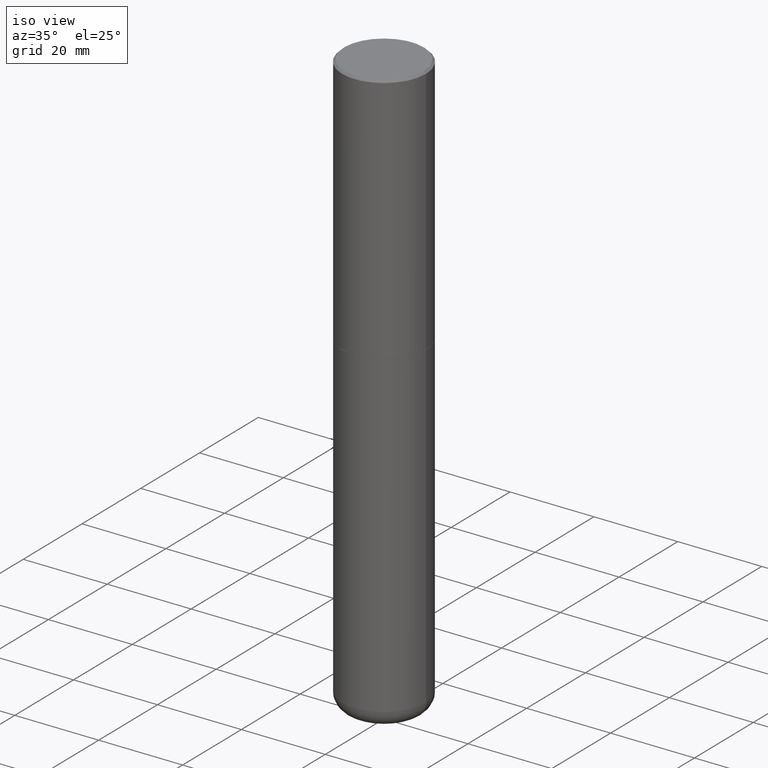
[diagram: clean part render]
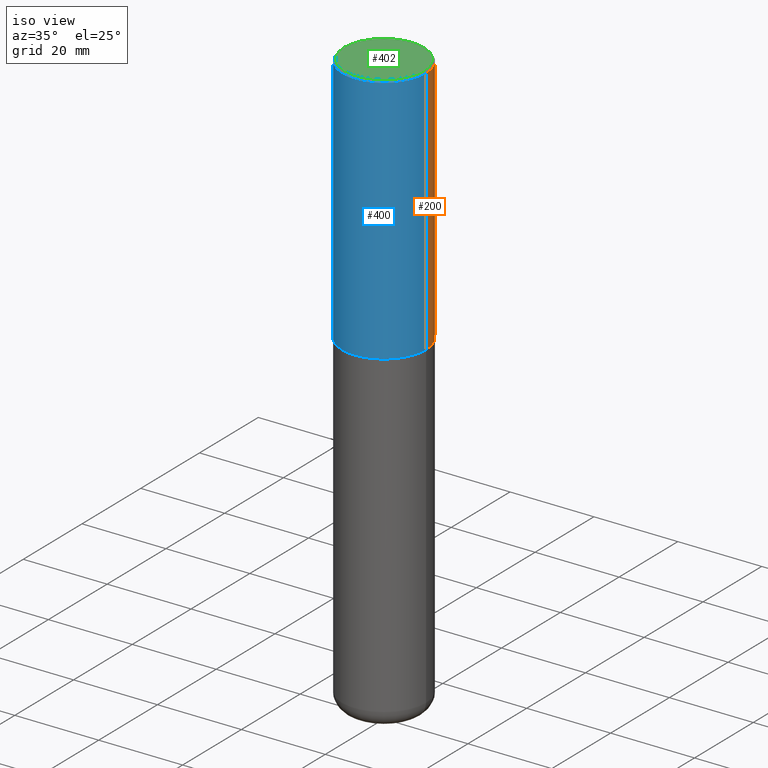
[diagram: same view with three faces highlighted in distinct colors, each labeled with its STEP entity id]
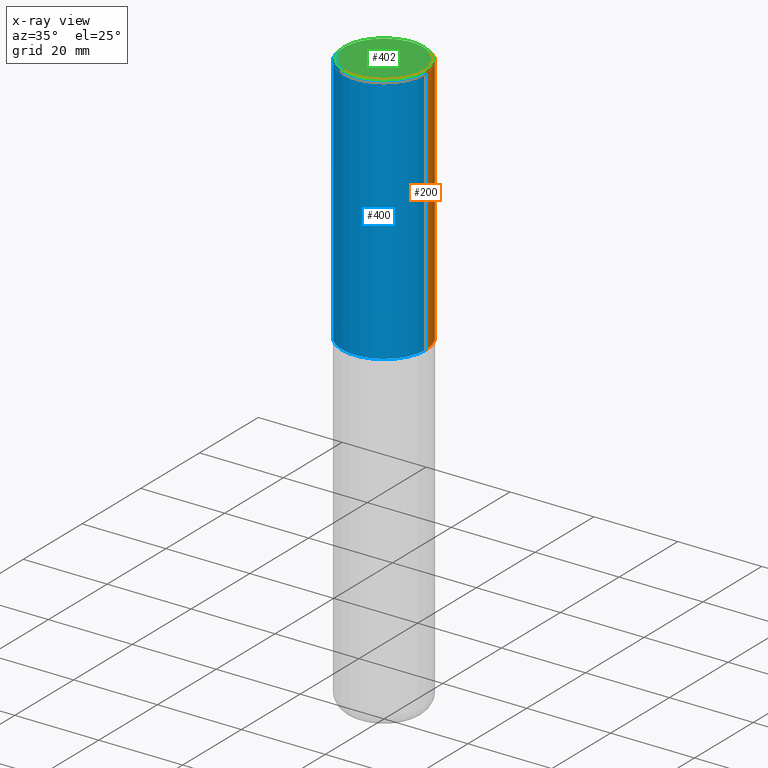
[diagram: x-ray of the same camera — body ghosted, the three highlighted faces saturated]
A machine part, iso view with three faces highlighted in distinct colors.
The next image is the same camera in x-ray (body ghosted, the three faces saturated) — at least one of them is partly hidden behind the body in this view.
Their STEP definitions:

[orange] entity #200 — the highlighted cylindrical surface (partial cylindrical patch) has radius 10 mm, axis along (-0, 0, 1).
#7 = CARTESIAN_POINT ( 'NONE',  ( -0.3937000000000001054, 2.679362779428220707E-15, -0.02000000000000008715 ) ) ;
#15 = CARTESIAN_POINT ( 'NONE',  ( -0.3937000000000002164, 2.797406750687515970E-15, -1.936584745033357576E-29 ) ) ;
#35 = VECTOR ( 'NONE', #297, 39.37007874015748143 ) ;
#44 = DIRECTION ( 'NONE',  ( -2.445468806185136597E-29, 3.491481338843145583E-15, 1.000000000000000000 ) ) ;
#50 = CARTESIAN_POINT ( 'NONE',  ( -0.3937000000000002720, -1.359550931339130834E-15, -2.361199999999999743 ) ) ;
#58 = CARTESIAN_POINT ( 'NONE',  ( 0.3937000000000002720, -1.099327814348151984E-14, -2.361199999999999743 ) ) ;
#65 = ORIENTED_EDGE ( 'NONE', *, *, #333, .F. ) ;
#66 = EDGE_CURVE ( 'NONE', #158, #128, #101, .T. ) ;
#68 = ORIENTED_EDGE ( 'NONE', *, *, #260, .F. ) ;
#70 = EDGE_CURVE ( 'NONE', #128, #416, #175, .T. ) ;
#87 = CARTESIAN_POINT ( 'NONE',  ( 0.3937000000000002164, -2.749192406205084794E-15, 1.919750796630861012E-29 ) ) ;
#96 = VERTEX_POINT ( 'NONE', #136 ) ;
#101 = CIRCLE ( 'NONE', #195, 0.3937000000000002720 ) ;
#115 = DIRECTION ( 'NONE',  ( -2.445468806185136597E-29, 3.491481338843145583E-15, 1.000000000000000000 ) ) ;
#128 = VERTEX_POINT ( 'NONE', #50 ) ;
#136 = CARTESIAN_POINT ( 'NONE',  ( 0.3937000000000001054, -2.770807688499516128E-15, -0.02000000000000008715 ) ) ;
#150 = DIRECTION ( 'NONE',  ( -2.445468806185136877E-29, 3.491481338843145188E-15, 1.000000000000000000 ) ) ;
#157 = CARTESIAN_POINT ( 'NONE',  ( 4.890937612370294178E-31, -6.982962677686321191E-17, -0.02000000000000008715 ) ) ;
#158 = VERTEX_POINT ( 'NONE', #58 ) ;
#160 = DIRECTION ( 'NONE',  ( 1.000000000000000000, -6.982962677686266711E-15, 0.000000000000000000 ) ) ;
#175 = LINE ( 'NONE', #15, #35 ) ;
#195 = AXIS2_PLACEMENT_3D ( 'NONE', #327, #44, #293 ) ;
#200 = ADVANCED_FACE ( 'NONE', ( #274 ), #307, .T. ) ;
#221 = EDGE_LOOP ( 'NONE', ( #233, #392, #65, #68 ) ) ;
#227 = VECTOR ( 'NONE', #150, 39.37007874015748143 ) ;
#233 = ORIENTED_EDGE ( 'NONE', *, *, #66, .T. ) ;
#249 = AXIS2_PLACEMENT_3D ( 'NONE', #157, #310, #160 ) ;
#260 = EDGE_CURVE ( 'NONE', #158, #96, #406, .T. ) ;
#274 = FACE_OUTER_BOUND ( 'NONE', #221, .T. ) ;
#280 = CIRCLE ( 'NONE', #249, 0.3937000000000001054 ) ;
#293 = DIRECTION ( 'NONE',  ( 1.000000000000000000, -6.982962677686265922E-15, 0.000000000000000000 ) ) ;
#297 = DIRECTION ( 'NONE',  ( -2.445468806185136877E-29, 3.491481338843145188E-15, 1.000000000000000000 ) ) ;
#307 = CYLINDRICAL_SURFACE ( 'NONE', #362, 0.3937000000000002164 ) ;
#310 = DIRECTION ( 'NONE',  ( -2.445468806185136597E-29, 3.491481338843145583E-15, 1.000000000000000000 ) ) ;
#327 = CARTESIAN_POINT ( 'NONE',  ( 5.774240945164344150E-29, -8.244085737276435042E-15, -2.361199999999999743 ) ) ;
#333 = EDGE_CURVE ( 'NONE', #96, #416, #280, .T. ) ;
#362 = AXIS2_PLACEMENT_3D ( 'NONE', #403, #115, #401 ) ;
#392 = ORIENTED_EDGE ( 'NONE', *, *, #70, .T. ) ;
#401 = DIRECTION ( 'NONE',  ( 1.000000000000000000, -6.982962677686266711E-15, 4.876176775795935793E-29 ) ) ;
#403 = CARTESIAN_POINT ( 'NONE',  ( 0.000000000000000000, 0.000000000000000000, 0.000000000000000000 ) ) ;
#406 = LINE ( 'NONE', #87, #227 ) ;
#416 = VERTEX_POINT ( 'NONE', #7 ) ;

[blue] entity #400 — the highlighted cylindrical surface (partial cylindrical patch) has radius 10 mm, axis along (-0, 0, 1).
#7 = CARTESIAN_POINT ( 'NONE',  ( -0.3937000000000001054, 2.679362779428220707E-15, -0.02000000000000008715 ) ) ;
#15 = CARTESIAN_POINT ( 'NONE',  ( -0.3937000000000002164, 2.797406750687515970E-15, -1.936584745033357576E-29 ) ) ;
#33 = DIRECTION ( 'NONE',  ( -2.445468806185136597E-29, 3.491481338843145583E-15, 1.000000000000000000 ) ) ;
#35 = VECTOR ( 'NONE', #297, 39.37007874015748143 ) ;
#50 = CARTESIAN_POINT ( 'NONE',  ( -0.3937000000000002720, -1.359550931339130834E-15, -2.361199999999999743 ) ) ;
#55 = AXIS2_PLACEMENT_3D ( 'NONE', #250, #281, #311 ) ;
#58 = CARTESIAN_POINT ( 'NONE',  ( 0.3937000000000002720, -1.099327814348151984E-14, -2.361199999999999743 ) ) ;
#62 = DIRECTION ( 'NONE',  ( 1.000000000000000000, -6.982962677686266711E-15, 4.876176775795935793E-29 ) ) ;
#70 = EDGE_CURVE ( 'NONE', #128, #416, #175, .T. ) ;
#86 = DIRECTION ( 'NONE',  ( 1.000000000000000000, -6.982962677686266711E-15, 0.000000000000000000 ) ) ;
#87 = CARTESIAN_POINT ( 'NONE',  ( 0.3937000000000002164, -2.749192406205084794E-15, 1.919750796630861012E-29 ) ) ;
#96 = VERTEX_POINT ( 'NONE', #136 ) ;
#128 = VERTEX_POINT ( 'NONE', #50 ) ;
#136 = CARTESIAN_POINT ( 'NONE',  ( 0.3937000000000001054, -2.770807688499516128E-15, -0.02000000000000008715 ) ) ;
#150 = DIRECTION ( 'NONE',  ( -2.445468806185136877E-29, 3.491481338843145188E-15, 1.000000000000000000 ) ) ;
#156 = AXIS2_PLACEMENT_3D ( 'NONE', #309, #244, #86 ) ;
#158 = VERTEX_POINT ( 'NONE', #58 ) ;
#175 = LINE ( 'NONE', #15, #35 ) ;
#217 = ORIENTED_EDGE ( 'NONE', *, *, #332, .T. ) ;
#220 = FACE_OUTER_BOUND ( 'NONE', #367, .T. ) ;
#227 = VECTOR ( 'NONE', #150, 39.37007874015748143 ) ;
#229 = ORIENTED_EDGE ( 'NONE', *, *, #260, .T. ) ;
#236 = CIRCLE ( 'NONE', #156, 0.3937000000000001054 ) ;
#244 = DIRECTION ( 'NONE',  ( -2.445468806185136597E-29, 3.491481338843145583E-15, 1.000000000000000000 ) ) ;
#250 = CARTESIAN_POINT ( 'NONE',  ( 5.774240945164344150E-29, -8.244085737276435042E-15, -2.361199999999999743 ) ) ;
#260 = EDGE_CURVE ( 'NONE', #158, #96, #406, .T. ) ;
#263 = EDGE_CURVE ( 'NONE', #416, #96, #236, .T. ) ;
#281 = DIRECTION ( 'NONE',  ( -2.445468806185136597E-29, 3.491481338843145583E-15, 1.000000000000000000 ) ) ;
#282 = ORIENTED_EDGE ( 'NONE', *, *, #263, .F. ) ;
#297 = DIRECTION ( 'NONE',  ( -2.445468806185136877E-29, 3.491481338843145188E-15, 1.000000000000000000 ) ) ;
#309 = CARTESIAN_POINT ( 'NONE',  ( 4.890937612370294178E-31, -6.982962677686321191E-17, -0.02000000000000008715 ) ) ;
#311 = DIRECTION ( 'NONE',  ( 1.000000000000000000, -6.982962677686265922E-15, 0.000000000000000000 ) ) ;
#313 = AXIS2_PLACEMENT_3D ( 'NONE', #410, #33, #62 ) ;
#332 = EDGE_CURVE ( 'NONE', #128, #158, #366, .T. ) ;
#366 = CIRCLE ( 'NONE', #55, 0.3937000000000002720 ) ;
#367 = EDGE_LOOP ( 'NONE', ( #396, #217, #229, #282 ) ) ;
#382 = CYLINDRICAL_SURFACE ( 'NONE', #313, 0.3937000000000002164 ) ;
#396 = ORIENTED_EDGE ( 'NONE', *, *, #70, .F. ) ;
#400 = ADVANCED_FACE ( 'NONE', ( #220 ), #382, .T. ) ;
#406 = LINE ( 'NONE', #87, #227 ) ;
#410 = CARTESIAN_POINT ( 'NONE',  ( 0.000000000000000000, 0.000000000000000000, 0.000000000000000000 ) ) ;
#416 = VERTEX_POINT ( 'NONE', #7 ) ;

[green] entity #402 — the highlighted planar face has unit normal (0, -0, -1).
#12 = CARTESIAN_POINT ( 'NONE',  ( -0.3736999999999999211, 2.644447966039789453E-15, 2.262311619753034352E-16 ) ) ;
#49 = AXIS2_PLACEMENT_3D ( 'NONE', #370, #377, #375 ) ;
#80 = EDGE_LOOP ( 'NONE', ( #197, #312 ) ) ;
#92 = CARTESIAN_POINT ( 'NONE',  ( 2.609533152651356620E-15, 0.3736999999999999211, -1.191650995338022328E-15 ) ) ;
#93 = VERTEX_POINT ( 'NONE', #12 ) ;
#97 = EDGE_CURVE ( 'NONE', #93, #355, #187, .T. ) ;
#143 = AXIS2_PLACEMENT_3D ( 'NONE', #264, #399, #177 ) ;
#177 = DIRECTION ( 'NONE',  ( 1.000000000000000000, -6.982962677686266711E-15, 4.877734241229876808E-29 ) ) ;
#187 = CIRCLE ( 'NONE', #143, 0.3736999999999999211 ) ;
#197 = ORIENTED_EDGE ( 'NONE', *, *, #97, .T. ) ;
#218 = DIRECTION ( 'NONE',  ( 2.438088387897960049E-29, -3.491481338843145188E-15, -1.000000000000000000 ) ) ;
#223 = CARTESIAN_POINT ( 'NONE',  ( 0.3736999999999999211, -2.667287895133367964E-15, 2.262311619753402158E-16 ) ) ;
#231 = EDGE_CURVE ( 'NONE', #355, #93, #391, .T. ) ;
#264 = CARTESIAN_POINT ( 'NONE',  ( -5.532412495976664402E-45, 7.898818803016371119E-31, 2.262311619753217762E-16 ) ) ;
#312 = ORIENTED_EDGE ( 'NONE', *, *, #231, .T. ) ;
#322 = AXIS2_PLACEMENT_3D ( 'NONE', #92, #218, #351 ) ;
#351 = DIRECTION ( 'NONE',  ( -1.000000000000000000, 6.982962677686265922E-15, -4.876176775795935793E-29 ) ) ;
#354 = FACE_OUTER_BOUND ( 'NONE', #80, .T. ) ;
#355 = VERTEX_POINT ( 'NONE', #223 ) ;
#370 = CARTESIAN_POINT ( 'NONE',  ( -5.532412495976664402E-45, 7.898818803016371119E-31, 2.262311619753217762E-16 ) ) ;
#375 = DIRECTION ( 'NONE',  ( 1.000000000000000000, -6.982962677686266711E-15, 4.877734241229876808E-29 ) ) ;
#377 = DIRECTION ( 'NONE',  ( -2.445468806185136597E-29, 3.491481338843145583E-15, 1.000000000000000000 ) ) ;
#384 = PLANE ( 'NONE',  #322 ) ;
#391 = CIRCLE ( 'NONE', #49, 0.3736999999999999211 ) ;
#399 = DIRECTION ( 'NONE',  ( -2.445468806185136597E-29, 3.491481338843145583E-15, 1.000000000000000000 ) ) ;
#402 = ADVANCED_FACE ( 'NONE', ( #354 ), #384, .F. ) ;